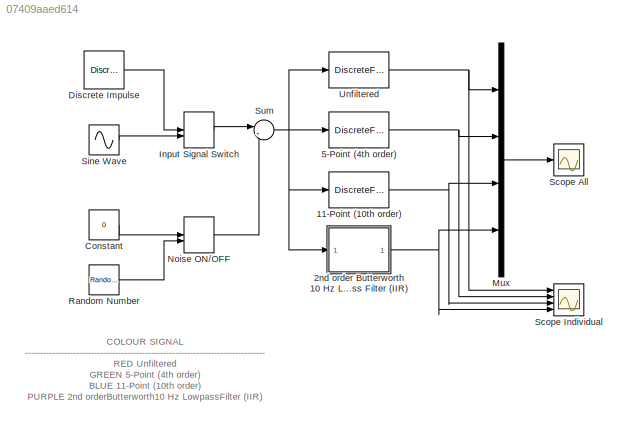
MODEL slx_07409aaed614
KIND model
CONFIG AbsTol = auto
CONFIG FixedStep = 0.01
CONFIG MaxStep = auto
CONFIG MinStep = auto
CONFIG RelTol = 1e-3
CONFIG SampleTimeConstraint = Unconstrained
CONFIG Solver = FixedStepDiscrete
CONFIG SolverMode = Auto
CONFIG SolverName = FixedStepDiscrete
CONFIG StartTime = 0.0
CONFIG StopTime = 4
BLOCK [DiscreteFilter] 11-Point (10th order)
  Denominator = [1]
  InputPortMap = u0
  Numerator = 1/11*ones(1,11,'double')
  Ports = [1, 1]
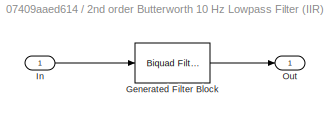
BLOCK [SubSystem] 2nd order Butterworth 10 Hz Lowpass Filter (IIR)
  CopyFcn = fdesignblkfcn(gcbh, {'CopyFcn'});
  DialogController = fdesignblkfcn
  InitFcn = fdesignblkfcn(gcbh, {'InitFcn'});
  Ports = [1, 1]
  RequestExecContextInheritance = off
  UserDataPersistent = on
  Variant = off
BLOCK [Reference] 2nd order Butterworth 10 Hz Lowpass Filter (IIR)/Generated Filter Block  REF=dsparch4/Biquad Filter
  Ports = [1, 1]
  SourceBlock = dsparch4/Biquad Filter
  SourceType = Biquad Filter
  Tag = BlockMethodSubSystem
  UserDataPersistent = on
BLOCK [Inport] 2nd order Butterworth 10 Hz Lowpass Filter (IIR)/In
  IconDisplay = Port number
BLOCK [Outport] 2nd order Butterworth 10 Hz Lowpass Filter (IIR)/Out
  IconDisplay = Port number
BLOCK [DiscreteFilter] 5-Point (4th order)
  Denominator = [1]
  InputPortMap = u0
  Numerator = 1/5*ones(1,5,'double')
  Ports = [1, 1]
BLOCK [Constant] Constant
  Value = 0
BLOCK [Reference] Discrete Impulse  REF=dspsrcs4/Discrete 
Impulse
  Ports = [0, 1]
  SourceBlock = dspsrcs4/Discrete \nImpulse
  SourceType = Discrete Impulse
BLOCK [ManualSwitch] Input Signal Switch
BLOCK [Mux] Mux
  DisplayOption = bar
  Ports = [4, 1]
BLOCK [ManualSwitch] Noise ON//OFF
BLOCK [RandomNumber] Random Number
  SampleTime = .01
  Seed = 111
  Variance = .2
BLOCK [Scope] Scope All
  Ports = [1]
  ScopeSpecificationString = Simulink.scopes.TimeScopeBlockCfg('CurrentConfiguration', extmgr.ConfigurationSet(extmgr.Configuration('Core','General UI',true,'FigureColor',[1 1 1]),extmgr.Configuration('Core','Source UI',true),extmgr.Configuration('Sources','WiredSimulink',true,'DataLoggingSaveFormat','StructureWithTime','DataLoggingDecimation','1','DataLoggingDecimateData',true),extmgr.Configuration('Visuals','Time Domain',tr...<+2273ch>
BLOCK [Scope] Scope Individual
  NumInputPorts = 4
  Ports = [4]
  ScopeSpecificationString = Simulink.scopes.TimeScopeBlockCfg('CurrentConfiguration', extmgr.ConfigurationSet(extmgr.Configuration('Core','General UI',true,'FigureColor',[1 1 1]),extmgr.Configuration('Core','Source UI',true),extmgr.Configuration('Sources','WiredSimulink',true,'DataLoggingVariableName','ScopeData1','DataLoggingSaveFormat','StructureWithTime','DataLoggingDecimation','1','DataLoggingDecimateData',true),extmgr.C...<+6718ch>
BLOCK [Sin] Sine Wave
  Amplitude = 4
  Frequency = 1*2*pi
  Ports = [0, 1]
  SampleTime = 0.01
BLOCK [Sum] Sum
  IconShape = round
  InputSameDT = off
  Inputs = |++
  OutDataTypeStr = Inherit: Inherit via internal rule
  Ports = [2, 1]
  SaturateOnIntegerOverflow = off
BLOCK [DiscreteFilter] Unfiltered
  Denominator = [1]
  InputPortMap = u0
  Ports = [1, 1]
ANNOTATION (root): COLOUR SIGNAL -------------------------------------------------------------------------------- RED Unfiltered GREEN 5-Point (4th order) BLUE 11-Point (10th order) PURPLE 2nd orderButterworth10 Hz LowpassFilter (IIR)
NET 11-Point (10th order):1 -> Mux:3, Scope Individual:3
NET 2nd order Butterworth 10 Hz Lowpass Filter (IIR):1 -> Mux:4, Scope Individual:4
NET 5-Point (4th order):1 -> Mux:2, Scope Individual:2
LINE Constant:1 -> Noise ON//OFF:1
LINE Discrete Impulse:1 -> Input Signal Switch:1
LINE Input Signal Switch:1 -> Sum:1
LINE Mux:1 -> Scope All:1
LINE Noise ON//OFF:1 -> Sum:2
LINE Random Number:1 -> Noise ON//OFF:2
LINE Sine Wave:1 -> Input Signal Switch:2
NET Sum:1 -> 11-Point (10th order):1, 2nd order Butterworth 10 Hz Lowpass Filter (IIR):1, 5-Point (4th order):1, Unfiltered:1
NET Unfiltered:1 -> Mux:1, Scope Individual:1
note: NET lines group one-source signal fan-out (src -> all destinations, sorted); 1:1 wires keep LINE
